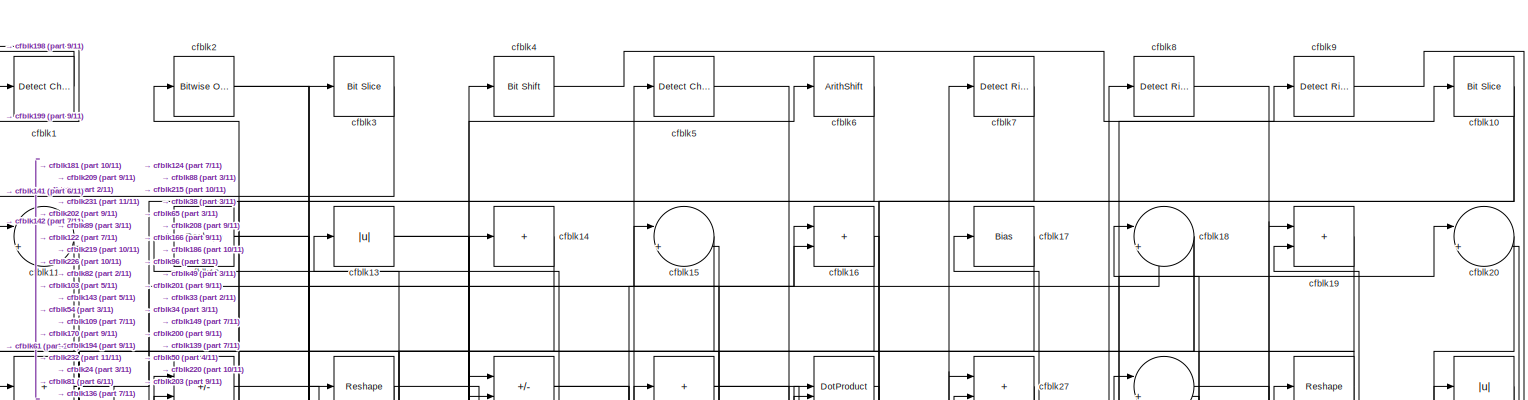
[diagram: root canvas - part 1/11, full width, top band]
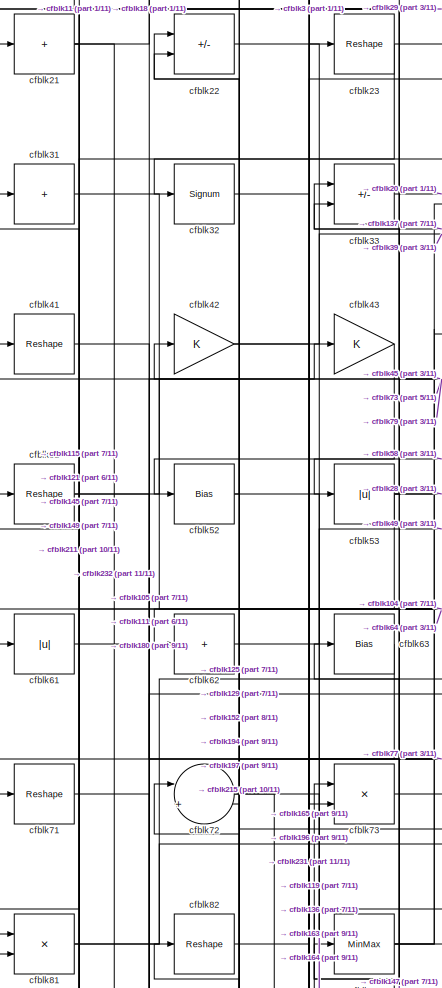
[diagram: root canvas - part 2/11, top left region]
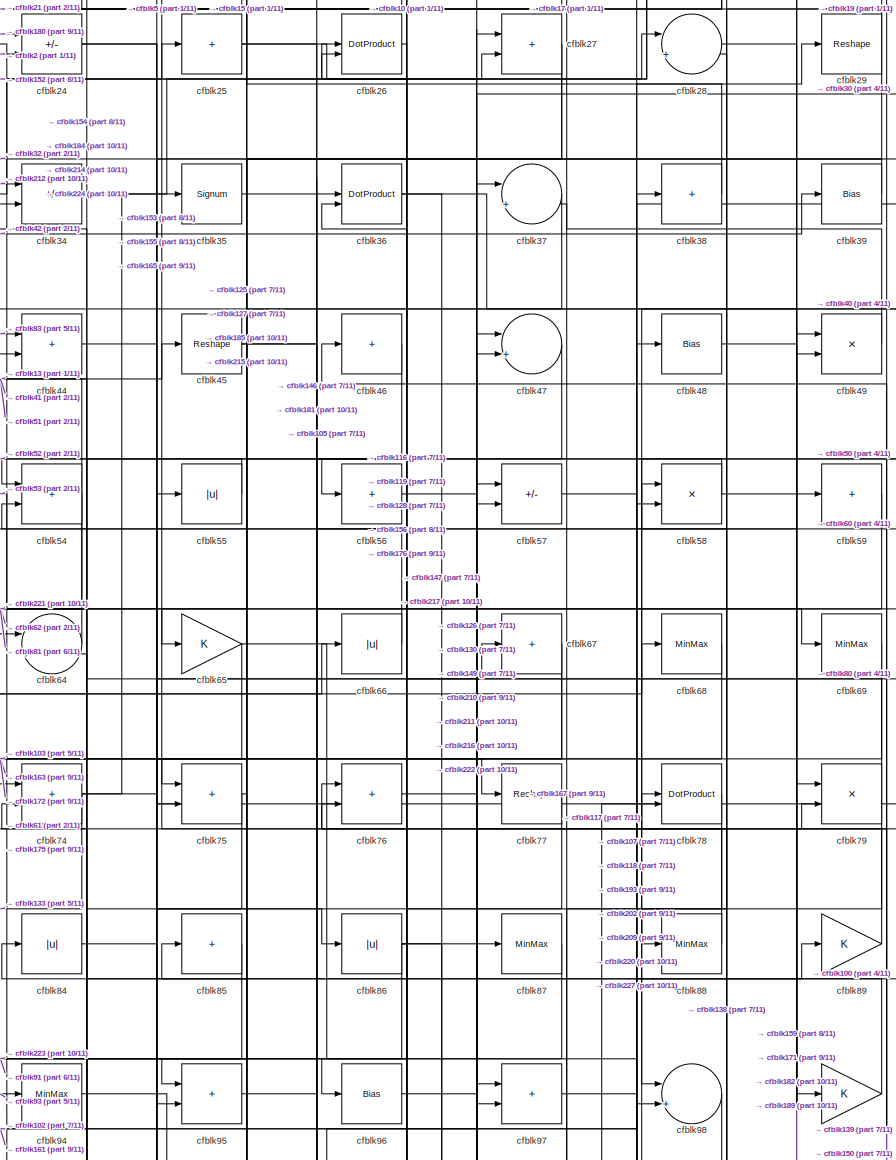
[diagram: root canvas - part 3/11, top center region]
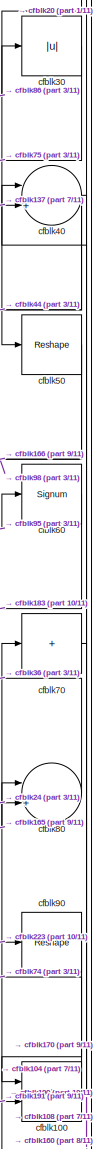
[diagram: root canvas - part 4/11, top right region]
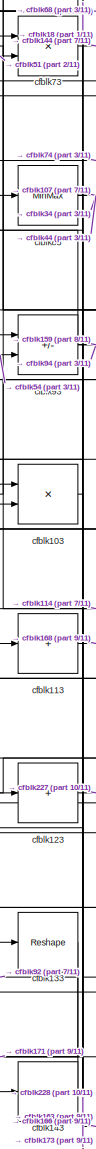
[diagram: root canvas - part 5/11, middle left region]
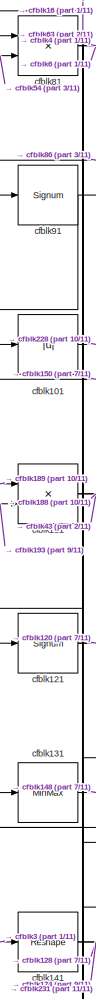
[diagram: root canvas - part 6/11, middle left region]
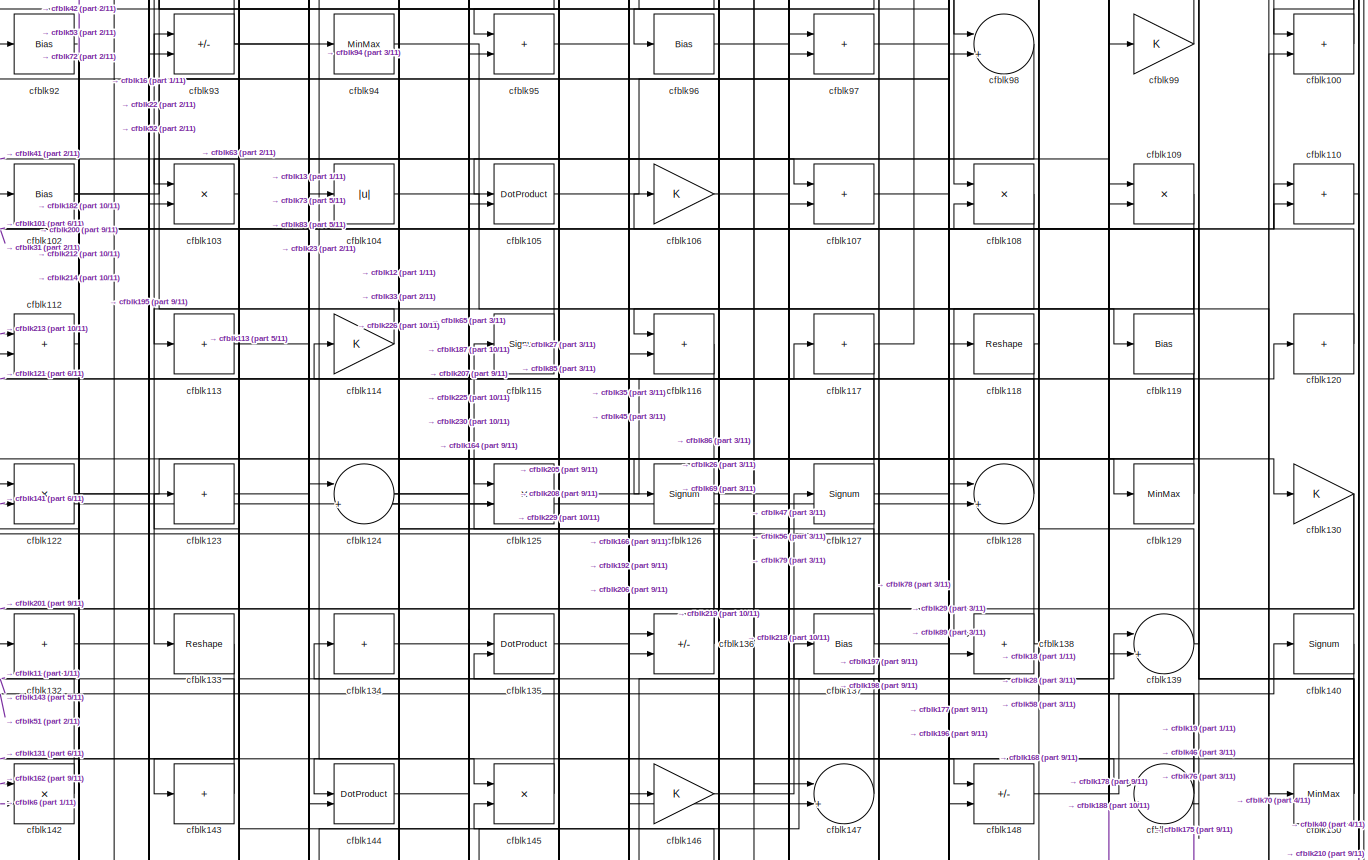
[diagram: root canvas - part 7/11, full width, middle band]
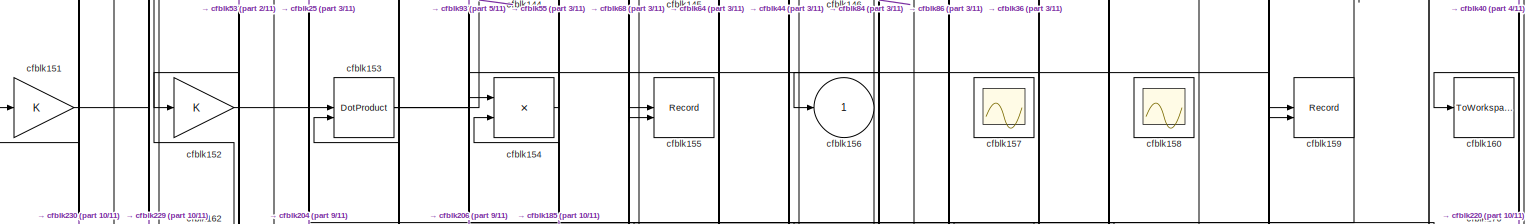
[diagram: root canvas - part 8/11, full width, middle band]
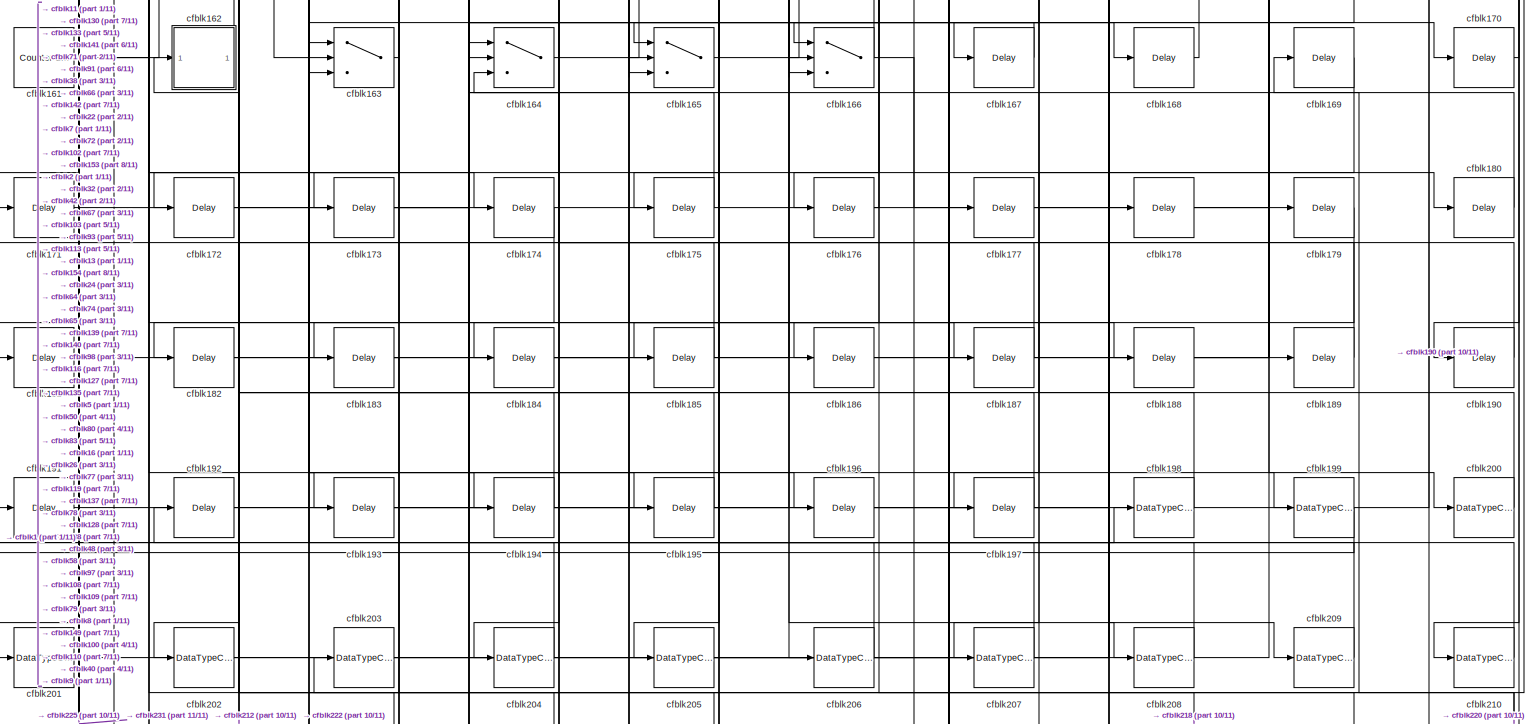
[diagram: root canvas - part 9/11, full width, bottom band]
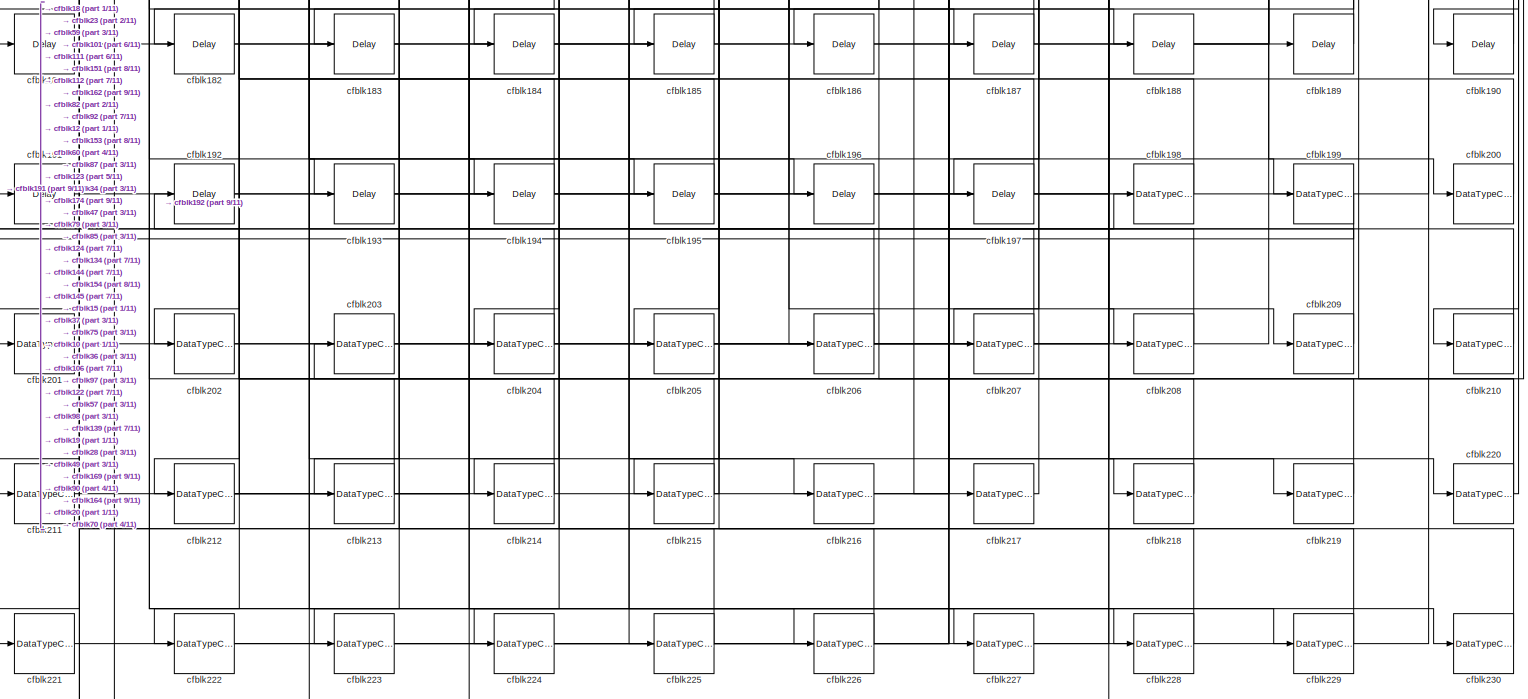
[diagram: root canvas - part 10/11, full width, bottom band]
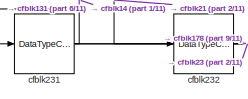
[diagram: root canvas - part 11/11, bottom left region]
MODEL slx_a88f3c303e26
KIND model
CONFIG AbsTol = auto
CONFIG EnableMultiTasking = off
CONFIG FixedStep = auto
CONFIG MaxStep = auto
CONFIG MinStep = auto
CONFIG RelTol = 1e-3
CONFIG SampleTimeConstraint = Unconstrained
CONFIG SolverName = VariableStepAuto
CONFIG StartTime = 0.0
CONFIG StopTime = 10.0
BLOCK [Reference] cfblk1  REF=simulink/Logic and Bit
Operations/Detect
Change
  LibrarySourceBlock = hdlsllib/Logic and Bit\nOperations/Detect\nChange
  SourceBlock = simulink/Logic and Bit\nOperations/Detect\nChange
  SourceType = Detect Change
BLOCK [Reference] cfblk10  REF=hdlsllib/Logic and Bit
Operations/Bit Slice
  SourceBlock = hdlsllib/Logic and Bit\nOperations/Bit Slice
  SourceType = Bit Slice
BLOCK [Sum] cfblk100
  IconShape = rectangular
BLOCK [Abs] cfblk101
  SaturateOnIntegerOverflow = off
BLOCK [Bias] cfblk102
  Bias = 0.0
  SaturateOnIntegerOverflow = off
BLOCK [Product] cfblk103
  Inputs = */
  RndMeth = Zero
  SaturateOnIntegerOverflow = on
BLOCK [Abs] cfblk104
  SaturateOnIntegerOverflow = off
BLOCK [DotProduct] cfblk105
  OutDataTypeStr = Inherit: Inherit via internal rule
BLOCK [Gain] cfblk106
BLOCK [Sum] cfblk107
  IconShape = rectangular
BLOCK [Product] cfblk108
  Inputs = */
  RndMeth = Zero
  SaturateOnIntegerOverflow = on
BLOCK [Product] cfblk109
  Inputs = */
  RndMeth = Zero
  SaturateOnIntegerOverflow = on
BLOCK [Sum] cfblk11
  Inputs = |++
BLOCK [Sum] cfblk110
  IconShape = rectangular
BLOCK [Product] cfblk111
  Inputs = */
  RndMeth = Zero
  SaturateOnIntegerOverflow = on
BLOCK [Sum] cfblk112
  IconShape = rectangular
BLOCK [Sum] cfblk113
  IconShape = rectangular
  Inputs = +
BLOCK [Gain] cfblk114
BLOCK [Signum] cfblk115
BLOCK [Sum] cfblk116
  IconShape = rectangular
BLOCK [Sum] cfblk117
  IconShape = rectangular
  Inputs = +
BLOCK [Reshape] cfblk118
BLOCK [Bias] cfblk119
  Bias = 0.0
  SaturateOnIntegerOverflow = off
BLOCK [Reshape] cfblk12
BLOCK [Sum] cfblk120
  IconShape = rectangular
  Inputs = +
BLOCK [Signum] cfblk121
BLOCK [Product] cfblk122
  Inputs = */
  RndMeth = Zero
  SaturateOnIntegerOverflow = on
BLOCK [Sum] cfblk123
  IconShape = rectangular
  Inputs = +
BLOCK [Sum] cfblk124
  Inputs = |++
BLOCK [Product] cfblk125
  Inputs = */
  RndMeth = Zero
  SaturateOnIntegerOverflow = on
BLOCK [Signum] cfblk126
BLOCK [Signum] cfblk127
BLOCK [Sum] cfblk128
  Inputs = |++
BLOCK [MinMax] cfblk129
BLOCK [Abs] cfblk13
  SaturateOnIntegerOverflow = off
BLOCK [Gain] cfblk130
BLOCK [MinMax] cfblk131
BLOCK [Sum] cfblk132
  IconShape = rectangular
  Inputs = +
BLOCK [Reshape] cfblk133
BLOCK [Sum] cfblk134
  IconShape = rectangular
  Inputs = +
BLOCK [DotProduct] cfblk135
  OutDataTypeStr = Inherit: Inherit via internal rule
BLOCK [Sum] cfblk136
  IconShape = rectangular
  Inputs = +-
BLOCK [Bias] cfblk137
  Bias = 0.0
  SaturateOnIntegerOverflow = off
BLOCK [Sum] cfblk138
  IconShape = rectangular
BLOCK [Sum] cfblk139
  Inputs = |++
BLOCK [Sum] cfblk14
  IconShape = rectangular
  Inputs = +
BLOCK [Signum] cfblk140
BLOCK [Reshape] cfblk141
BLOCK [Product] cfblk142
  Inputs = */
  RndMeth = Zero
  SaturateOnIntegerOverflow = on
BLOCK [Sum] cfblk143
  IconShape = rectangular
  Inputs = +
BLOCK [DotProduct] cfblk144
  OutDataTypeStr = Inherit: Inherit via internal rule
BLOCK [Product] cfblk145
  Inputs = */
  RndMeth = Zero
  SaturateOnIntegerOverflow = on
BLOCK [Gain] cfblk146
BLOCK [Sum] cfblk147
  Inputs = |++
BLOCK [Sum] cfblk148
  IconShape = rectangular
  Inputs = +-
BLOCK [Sum] cfblk149
  Inputs = |++
BLOCK [Sum] cfblk15
  Inputs = |++
BLOCK [MinMax] cfblk150
BLOCK [Gain] cfblk151
BLOCK [Gain] cfblk152
BLOCK [DotProduct] cfblk153
  OutDataTypeStr = Inherit: Inherit via internal rule
BLOCK [Product] cfblk154
  Inputs = */
  RndMeth = Zero
  SaturateOnIntegerOverflow = on
BLOCK [Record] cfblk155
  CompatibilityTag = XY
  FileSettingsInternal = {"entries":[{"content":{"excelSettings":{"content":{},"type":"Streamout.ExcelSettings"}},"type":"Streamout.FileSettingStorage","uuid":""}],"packageUris":["http:\/\/schema.mathworks.com\/mf0\/streamout_blocks\/R2020a"],"version":"1.0"}
  Layout = [1 1]
  SignalsInternal = {"entries":[{"content":{"signals":[{"content":{"blockPath":[],"dimensions":[1],"domain":"","lineColor":"#a2142f","plots":[1],"port":1,"signalID":3560,"signalName":"XY Graph:1"},"type":"RecordBlkView.Signal","uuid":""},{"content":{"blockPath":[],"dimensions":[1],"domain":"","lineColor":"#139fff","plots":[1],"port":2,"signalID":3563,"signalName":"XY Graph:2"},"type":"RecordBlkView.Signal","uuid":""}...<+146ch>
  VisualizationBindings = {"xyplotplugin":{"info":[{"series":[{"bindingParametersList":[{"parameter":"X-Axis","signalID":3560,"signalName":"XY Graph:1"},{"parameter":"Y-Axis","signalID":3563,"signalName":"XY Graph:2"}],"seriesID":33812}],"subplotID":1}]}}
  st = -1
BLOCK [Outport] cfblk156
  VectorParamsAs1DForOutWhenUnconnected = off
BLOCK [Scope] cfblk157
  Floating = on
  NumInputPorts = 1
  ScopeSpecificationString = Simulink.scopes.TimeScopeBlockCfg('CurrentConfiguration', extmgr.ConfigurationSet(extmgr.Configuration('Core','General UI',true,'FigureColor',[0.156862745098039 0.156862745098039 0.156862745098039]),extmgr.Configuration('Core','Source UI',true),extmgr.Configuration('Sources','WiredSimulink',true,'DataLoggingVariableName','ScopeData1','DataLoggingSaveFormat','StructureWithTime','DataLoggingLimitDat...<+2713ch>
BLOCK [Scope] cfblk158
  Floating = on
  NumInputPorts = 1
  ScopeSpecificationString = Simulink.scopes.TimeScopeBlockCfg('CurrentConfiguration', extmgr.ConfigurationSet(extmgr.Configuration('Core','General UI',true,'FigureColor',[0.156862745098039 0.156862745098039 0.156862745098039]),extmgr.Configuration('Core','Source UI',true),extmgr.Configuration('Sources','WiredSimulink',true,'DataLoggingVariableName','ScopeData1','DataLoggingSaveFormat','StructureWithTime','DataLoggingLimitDat...<+2713ch>
BLOCK [Record] cfblk159
  CompatibilityTag = XY
  FileSettingsInternal = {"entries":[{"content":{"excelSettings":{"content":{},"type":"Streamout.ExcelSettings"}},"type":"Streamout.FileSettingStorage","uuid":""}],"packageUris":["http:\/\/schema.mathworks.com\/mf0\/streamout_blocks\/R2020a"],"version":"1.0"}
  Layout = [1 1]
  SignalsInternal = {"entries":[{"content":{"signals":[{"content":{"blockPath":[],"dimensions":[1],"domain":"","lineColor":"#a2142f","plots":[1],"port":1,"signalID":3568,"signalName":"XY Graph:1"},"type":"RecordBlkView.Signal","uuid":""},{"content":{"blockPath":[],"dimensions":[1],"domain":"","lineColor":"#139fff","plots":[1],"port":2,"signalID":3571,"signalName":"XY Graph:2"},"type":"RecordBlkView.Signal","uuid":""}...<+146ch>
  VisualizationBindings = {"xyplotplugin":{"info":[{"series":[{"bindingParametersList":[{"parameter":"X-Axis","signalID":3568,"signalName":"XY Graph:1"},{"parameter":"Y-Axis","signalID":3571,"signalName":"XY Graph:2"}],"seriesID":25713}],"subplotID":1}]}}
  st = -1
BLOCK [Sum] cfblk16
  IconShape = rectangular
BLOCK [ToWorkspace] cfblk160
  MaxDataPoints = inf
  SampleTime = -1
  SaveFormat = Timeseries
  VariableName = simout
BLOCK [Reference] cfblk161  REF=hdlsllib/Sources/Counter
Limited
  SourceBlock = hdlsllib/Sources/Counter\nLimited
  SourceType = Counter Limited
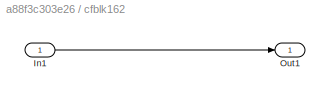
BLOCK [SubSystem] cfblk162
  LibrarySourceBlock = hdlsllib/Ports &\nSubsystems/Subsystem
BLOCK [Inport] cfblk162/In1
BLOCK [Outport] cfblk162/Out1
BLOCK [Switch] cfblk163
  InputSameDT = off
  SaturateOnIntegerOverflow = off
BLOCK [Switch] cfblk164
  InputSameDT = off
  SaturateOnIntegerOverflow = off
BLOCK [Switch] cfblk165
  InputSameDT = off
  SaturateOnIntegerOverflow = off
BLOCK [Switch] cfblk166
  InputSameDT = off
  SaturateOnIntegerOverflow = off
BLOCK [Delay] cfblk167
  InputPortMap = u0
  SampleTime = 1
BLOCK [Delay] cfblk168
  InputPortMap = u0
  SampleTime = 1
BLOCK [Delay] cfblk169
  InputPortMap = u0
  SampleTime = 1
BLOCK [Bias] cfblk17
  Bias = 0.0
  SaturateOnIntegerOverflow = off
BLOCK [Delay] cfblk170
  InputPortMap = u0
  SampleTime = 1
BLOCK [Delay] cfblk171
  InputPortMap = u0
  SampleTime = 1
BLOCK [Delay] cfblk172
  InputPortMap = u0
  SampleTime = 1
BLOCK [Delay] cfblk173
  InputPortMap = u0
  SampleTime = 1
BLOCK [Delay] cfblk174
  InputPortMap = u0
  SampleTime = 1
BLOCK [Delay] cfblk175
  InputPortMap = u0
  SampleTime = 1
BLOCK [Delay] cfblk176
  InputPortMap = u0
  SampleTime = 1
BLOCK [Delay] cfblk177
  InputPortMap = u0
  SampleTime = 1
BLOCK [Delay] cfblk178
  InputPortMap = u0
  SampleTime = 1
BLOCK [Delay] cfblk179
  InputPortMap = u0
  SampleTime = 1
BLOCK [Sum] cfblk18
  Inputs = |++
BLOCK [Delay] cfblk180
  InputPortMap = u0
  SampleTime = 1
BLOCK [Delay] cfblk181
  InputPortMap = u0
  SampleTime = 1
BLOCK [Delay] cfblk182
  InputPortMap = u0
  SampleTime = 1
BLOCK [Delay] cfblk183
  InputPortMap = u0
  SampleTime = 1
BLOCK [Delay] cfblk184
  InputPortMap = u0
  SampleTime = 1
BLOCK [Delay] cfblk185
  InputPortMap = u0
  SampleTime = 1
BLOCK [Delay] cfblk186
  InputPortMap = u0
  SampleTime = 1
BLOCK [Delay] cfblk187
  InputPortMap = u0
  SampleTime = 1
BLOCK [Delay] cfblk188
  InputPortMap = u0
  SampleTime = 1
BLOCK [Delay] cfblk189
  InputPortMap = u0
  SampleTime = 1
BLOCK [Sum] cfblk19
  IconShape = rectangular
BLOCK [Delay] cfblk190
  InputPortMap = u0
  SampleTime = 1
BLOCK [Delay] cfblk191
  InputPortMap = u0
  SampleTime = 1
BLOCK [Delay] cfblk192
  InputPortMap = u0
  SampleTime = 1
BLOCK [Delay] cfblk193
  InputPortMap = u0
  SampleTime = 1
BLOCK [Delay] cfblk194
  InputPortMap = u0
  SampleTime = 1
BLOCK [Delay] cfblk195
  InputPortMap = u0
  SampleTime = 1
BLOCK [Delay] cfblk196
  InputPortMap = u0
  SampleTime = 1
BLOCK [Delay] cfblk197
  InputPortMap = u0
  SampleTime = 1
BLOCK [DataTypeConversion] cfblk198
  OutDataTypeStr = uint8
  RndMeth = Floor
  SaturateOnIntegerOverflow = off
BLOCK [DataTypeConversion] cfblk199
  OutDataTypeStr = uint8
  RndMeth = Floor
  SaturateOnIntegerOverflow = off
BLOCK [Reference] cfblk2  REF=simulink/Logic and Bit
Operations/Bitwise
Operator
  LibrarySourceBlock = hdlsllib/Logic and Bit\nOperations/Bitwise\nOperator
  SourceBlock = simulink/Logic and Bit\nOperations/Bitwise\nOperator
  SourceType = Bitwise Operator
BLOCK [Sum] cfblk20
  Inputs = |++
BLOCK [DataTypeConversion] cfblk200
  OutDataTypeStr = uint8
  RndMeth = Floor
  SaturateOnIntegerOverflow = off
BLOCK [DataTypeConversion] cfblk201
  OutDataTypeStr = uint8
  RndMeth = Floor
  SaturateOnIntegerOverflow = off
BLOCK [DataTypeConversion] cfblk202
  OutDataTypeStr = uint8
  RndMeth = Floor
  SaturateOnIntegerOverflow = off
BLOCK [DataTypeConversion] cfblk203
  OutDataTypeStr = uint8
  RndMeth = Floor
  SaturateOnIntegerOverflow = off
BLOCK [DataTypeConversion] cfblk204
  OutDataTypeStr = uint8
  RndMeth = Floor
  SaturateOnIntegerOverflow = off
BLOCK [DataTypeConversion] cfblk205
  OutDataTypeStr = uint8
  RndMeth = Floor
  SaturateOnIntegerOverflow = off
BLOCK [DataTypeConversion] cfblk206
  OutDataTypeStr = uint8
  RndMeth = Floor
  SaturateOnIntegerOverflow = off
BLOCK [DataTypeConversion] cfblk207
  OutDataTypeStr = uint8
  RndMeth = Floor
  SaturateOnIntegerOverflow = off
BLOCK [DataTypeConversion] cfblk208
  OutDataTypeStr = uint8
  RndMeth = Floor
  SaturateOnIntegerOverflow = off
BLOCK [DataTypeConversion] cfblk209
  OutDataTypeStr = uint8
  RndMeth = Floor
  SaturateOnIntegerOverflow = off
BLOCK [Sum] cfblk21
  IconShape = rectangular
  Inputs = +
BLOCK [DataTypeConversion] cfblk210
  OutDataTypeStr = uint8
  RndMeth = Floor
  SaturateOnIntegerOverflow = off
BLOCK [DataTypeConversion] cfblk211
  OutDataTypeStr = uint8
  RndMeth = Floor
  SaturateOnIntegerOverflow = off
BLOCK [DataTypeConversion] cfblk212
  RndMeth = Floor
  SaturateOnIntegerOverflow = off
BLOCK [DataTypeConversion] cfblk213
  OutDataTypeStr = uint8
  RndMeth = Floor
  SaturateOnIntegerOverflow = off
BLOCK [DataTypeConversion] cfblk214
  OutDataTypeStr = uint8
  RndMeth = Floor
  SaturateOnIntegerOverflow = off
BLOCK [DataTypeConversion] cfblk215
  RndMeth = Floor
  SaturateOnIntegerOverflow = off
BLOCK [DataTypeConversion] cfblk216
  OutDataTypeStr = uint8
  RndMeth = Floor
  SaturateOnIntegerOverflow = off
BLOCK [DataTypeConversion] cfblk217
  OutDataTypeStr = uint8
  RndMeth = Floor
  SaturateOnIntegerOverflow = off
BLOCK [DataTypeConversion] cfblk218
  OutDataTypeStr = uint8
  RndMeth = Floor
  SaturateOnIntegerOverflow = off
BLOCK [DataTypeConversion] cfblk219
  OutDataTypeStr = uint8
  RndMeth = Floor
  SaturateOnIntegerOverflow = off
BLOCK [Sum] cfblk22
  IconShape = rectangular
  Inputs = +-
BLOCK [DataTypeConversion] cfblk220
  RndMeth = Floor
  SaturateOnIntegerOverflow = off
BLOCK [DataTypeConversion] cfblk221
  OutDataTypeStr = uint8
  RndMeth = Floor
  SaturateOnIntegerOverflow = off
BLOCK [DataTypeConversion] cfblk222
  OutDataTypeStr = uint8
  RndMeth = Floor
  SaturateOnIntegerOverflow = off
BLOCK [DataTypeConversion] cfblk223
  OutDataTypeStr = uint8
  RndMeth = Floor
  SaturateOnIntegerOverflow = off
BLOCK [DataTypeConversion] cfblk224
  OutDataTypeStr = uint8
  RndMeth = Floor
  SaturateOnIntegerOverflow = off
BLOCK [DataTypeConversion] cfblk225
  OutDataTypeStr = uint8
  RndMeth = Floor
  SaturateOnIntegerOverflow = off
BLOCK [DataTypeConversion] cfblk226
  OutDataTypeStr = uint8
  RndMeth = Floor
  SaturateOnIntegerOverflow = off
BLOCK [DataTypeConversion] cfblk227
  OutDataTypeStr = uint8
  RndMeth = Floor
  SaturateOnIntegerOverflow = off
BLOCK [DataTypeConversion] cfblk228
  OutDataTypeStr = uint8
  RndMeth = Floor
  SaturateOnIntegerOverflow = off
BLOCK [DataTypeConversion] cfblk229
  OutDataTypeStr = uint8
  RndMeth = Floor
  SaturateOnIntegerOverflow = off
BLOCK [Reshape] cfblk23
BLOCK [DataTypeConversion] cfblk230
  OutDataTypeStr = uint8
  RndMeth = Floor
  SaturateOnIntegerOverflow = off
BLOCK [DataTypeConversion] cfblk231
  RndMeth = Floor
  SaturateOnIntegerOverflow = off
BLOCK [DataTypeConversion] cfblk232
  OutDataTypeStr = uint8
  RndMeth = Floor
  SaturateOnIntegerOverflow = off
BLOCK [Sum] cfblk24
  IconShape = rectangular
  Inputs = +-
BLOCK [Sum] cfblk25
  IconShape = rectangular
  Inputs = +
BLOCK [DotProduct] cfblk26
  OutDataTypeStr = Inherit: Inherit via internal rule
BLOCK [Sum] cfblk27
  IconShape = rectangular
BLOCK [Sum] cfblk28
  Inputs = |++
BLOCK [Reshape] cfblk29
BLOCK [Reference] cfblk3  REF=hdlsllib/Logic and Bit
Operations/Bit Slice
  SourceBlock = hdlsllib/Logic and Bit\nOperations/Bit Slice
  SourceType = Bit Slice
BLOCK [Abs] cfblk30
  SaturateOnIntegerOverflow = off
BLOCK [Sum] cfblk31
  IconShape = rectangular
  Inputs = +
BLOCK [Signum] cfblk32
BLOCK [Sum] cfblk33
  IconShape = rectangular
  Inputs = +-
BLOCK [Sum] cfblk34
  IconShape = rectangular
  Inputs = +-
BLOCK [Signum] cfblk35
BLOCK [DotProduct] cfblk36
  OutDataTypeStr = Inherit: Inherit via internal rule
BLOCK [Sum] cfblk37
  Inputs = |++
BLOCK [Sum] cfblk38
  IconShape = rectangular
  Inputs = +
BLOCK [Bias] cfblk39
  Bias = 0.0
  SaturateOnIntegerOverflow = off
BLOCK [Reference] cfblk4  REF=hdlsllib/Logic and Bit
Operations/Bit Shift
  SourceBlock = hdlsllib/Logic and Bit\nOperations/Bit Shift
  SourceType = Bit Shift
BLOCK [Sum] cfblk40
  Inputs = |++
BLOCK [Reshape] cfblk41
BLOCK [Gain] cfblk42
BLOCK [Gain] cfblk43
BLOCK [Sum] cfblk44
  IconShape = rectangular
BLOCK [Reshape] cfblk45
BLOCK [Sum] cfblk46
  IconShape = rectangular
  Inputs = +
BLOCK [Sum] cfblk47
  Inputs = |++
BLOCK [Bias] cfblk48
  Bias = 0.0
  SaturateOnIntegerOverflow = off
BLOCK [Product] cfblk49
  Inputs = */
  RndMeth = Zero
  SaturateOnIntegerOverflow = on
BLOCK [Reference] cfblk5  REF=simulink/Logic and Bit
Operations/Detect
Change
  LibrarySourceBlock = hdlsllib/Logic and Bit\nOperations/Detect\nChange
  SourceBlock = simulink/Logic and Bit\nOperations/Detect\nChange
  SourceType = Detect Change
BLOCK [Reshape] cfblk50
BLOCK [Reshape] cfblk51
BLOCK [Bias] cfblk52
  Bias = 0.0
  SaturateOnIntegerOverflow = off
BLOCK [Abs] cfblk53
  SaturateOnIntegerOverflow = off
BLOCK [Sum] cfblk54
  IconShape = rectangular
BLOCK [Abs] cfblk55
  SaturateOnIntegerOverflow = off
BLOCK [Sum] cfblk56
  IconShape = rectangular
  Inputs = +
BLOCK [Sum] cfblk57
  IconShape = rectangular
  Inputs = +-
BLOCK [Product] cfblk58
  Inputs = */
  RndMeth = Zero
  SaturateOnIntegerOverflow = on
BLOCK [Sum] cfblk59
  IconShape = rectangular
  Inputs = +
BLOCK [ArithShift] cfblk6
  BitShiftNumber = 8
  InputPortMap = u0
BLOCK [Signum] cfblk60
BLOCK [Abs] cfblk61
  SaturateOnIntegerOverflow = off
BLOCK [Sum] cfblk62
  IconShape = rectangular
  Inputs = +
BLOCK [Bias] cfblk63
  Bias = 0.0
  SaturateOnIntegerOverflow = off
BLOCK [Sum] cfblk64
  Inputs = |++
BLOCK [Gain] cfblk65
BLOCK [Abs] cfblk66
  SaturateOnIntegerOverflow = off
BLOCK [Sum] cfblk67
  IconShape = rectangular
  Inputs = +
BLOCK [MinMax] cfblk68
BLOCK [MinMax] cfblk69
BLOCK [Reference] cfblk7  REF=hdlsllib/Logic and Bit
Operations/Detect Rise
Nonnegative
  SourceBlock = hdlsllib/Logic and Bit\nOperations/Detect Rise\nNonnegative
  SourceType = Detect Rise Nonnegative
BLOCK [Sum] cfblk70
  IconShape = rectangular
  Inputs = +
BLOCK [Reshape] cfblk71
BLOCK [Sum] cfblk72
  Inputs = |++
BLOCK [Product] cfblk73
  Inputs = */
  RndMeth = Zero
  SaturateOnIntegerOverflow = on
BLOCK [Sum] cfblk74
  IconShape = rectangular
BLOCK [Sum] cfblk75
  IconShape = rectangular
BLOCK [Sum] cfblk76
  IconShape = rectangular
BLOCK [Reshape] cfblk77
BLOCK [DotProduct] cfblk78
  OutDataTypeStr = Inherit: Inherit via internal rule
BLOCK [Product] cfblk79
  Inputs = */
  RndMeth = Zero
  SaturateOnIntegerOverflow = on
BLOCK [Reference] cfblk8  REF=hdlsllib/Logic and Bit
Operations/Detect Rise
Nonnegative
  SourceBlock = hdlsllib/Logic and Bit\nOperations/Detect Rise\nNonnegative
  SourceType = Detect Rise Nonnegative
BLOCK [Sum] cfblk80
  Inputs = |++
BLOCK [Product] cfblk81
  Inputs = */
  RndMeth = Zero
  SaturateOnIntegerOverflow = on
BLOCK [Reshape] cfblk82
BLOCK [MinMax] cfblk83
BLOCK [Abs] cfblk84
  SaturateOnIntegerOverflow = off
BLOCK [Sum] cfblk85
  IconShape = rectangular
  Inputs = +
BLOCK [Abs] cfblk86
  SaturateOnIntegerOverflow = off
BLOCK [MinMax] cfblk87
BLOCK [MinMax] cfblk88
BLOCK [Gain] cfblk89
BLOCK [Reference] cfblk9  REF=hdlsllib/Logic and Bit
Operations/Detect Rise
Positive
  SourceBlock = hdlsllib/Logic and Bit\nOperations/Detect Rise\nPositive
  SourceType = Detect Rise Positive
BLOCK [Reshape] cfblk90
BLOCK [Signum] cfblk91
BLOCK [Bias] cfblk92
  Bias = 0.0
  SaturateOnIntegerOverflow = off
BLOCK [Sum] cfblk93
  IconShape = rectangular
  Inputs = +-
BLOCK [MinMax] cfblk94
BLOCK [Sum] cfblk95
  IconShape = rectangular
BLOCK [Bias] cfblk96
  Bias = 0.0
  SaturateOnIntegerOverflow = off
BLOCK [Sum] cfblk97
  IconShape = rectangular
BLOCK [Sum] cfblk98
  Inputs = |++
BLOCK [Gain] cfblk99
LINE cfblk100:1 -> cfblk74:2
LINE cfblk101:1 -> cfblk228:1
NET cfblk102:1 -> cfblk195:1, cfblk47:1
LINE cfblk103:1 -> cfblk173:1
LINE cfblk104:1 -> cfblk70:1
LINE cfblk105:1 -> cfblk89:1
LINE cfblk106:1 -> cfblk218:1
LINE cfblk107:1 -> cfblk29:1
LINE cfblk108:1 -> cfblk138:1
LINE cfblk109:1 -> cfblk126:1
NET cfblk10:1 -> cfblk186:1, cfblk96:1
LINE cfblk110:1 -> cfblk210:1
NET cfblk111:1 -> cfblk188:1, cfblk43:1
LINE cfblk112:1 -> cfblk212:1
LINE cfblk113:1 -> cfblk168:1
LINE cfblk114:1 -> cfblk113:1
LINE cfblk115:1 -> cfblk31:1
LINE cfblk116:1 -> cfblk136:2
NET cfblk117:1 -> cfblk144:1, cfblk78:2
NET cfblk118:1 -> cfblk132:1, cfblk58:1
NET cfblk119:1 -> cfblk124:2, cfblk197:1, cfblk42:1, cfblk76:2
LINE cfblk11:1 -> cfblk61:1
LINE cfblk120:1 -> cfblk110:1
NET cfblk121:1 -> cfblk120:1, cfblk148:2
NET cfblk122:1 -> cfblk129:1, cfblk16:2
LINE cfblk123:1 -> cfblk227:1
NET cfblk124:1 -> cfblk16:1, cfblk187:1
LINE cfblk125:1 -> cfblk47:2
LINE cfblk126:1 -> cfblk79:2
NET cfblk127:1 -> cfblk110:2, cfblk166:2, cfblk85:1
LINE cfblk128:1 -> cfblk26:1
LINE cfblk129:1 -> cfblk72:1
NET cfblk12:1 -> cfblk219:1, cfblk226:1
NET cfblk130:1 -> cfblk149:2, cfblk201:1
LINE cfblk131:1 -> cfblk148:1
LINE cfblk132:1 -> cfblk117:1
LINE cfblk133:1 -> cfblk171:1
LINE cfblk134:1 -> cfblk225:1
LINE cfblk135:1 -> cfblk206:1
NET cfblk136:1 -> cfblk115:1, cfblk12:1
NET cfblk137:1 -> cfblk33:1, cfblk40:2
NET cfblk138:1 -> cfblk122:1, cfblk28:2
NET cfblk139:1 -> cfblk19:2, cfblk78:1
NET cfblk13:1 -> cfblk109:2, cfblk170:1
LINE cfblk140:1 -> cfblk205:1
NET cfblk141:1 -> cfblk128:2, cfblk174:1
LINE cfblk142:1 -> cfblk11:1
LINE cfblk143:1 -> cfblk92:1
LINE cfblk144:1 -> cfblk230:1
LINE cfblk145:1 -> cfblk114:1
LINE cfblk146:1 -> cfblk127:1
LINE cfblk147:1 -> cfblk63:1
LINE cfblk148:1 -> cfblk140:1
NET cfblk149:1 -> cfblk175:1, cfblk18:1, cfblk51:1
LINE cfblk14:1 -> cfblk231:1
NET cfblk150:1 -> cfblk101:1, cfblk46:1, cfblk76:1
LINE cfblk151:1 -> cfblk229:1
LINE cfblk152:1 -> cfblk25:1
NET cfblk153:1 -> cfblk55:1, cfblk68:1
LINE cfblk154:1 -> cfblk64:2
LINE cfblk15:1 -> cfblk103:1
NET cfblk161:1 -> cfblk38:1, cfblk66:1
LINE cfblk162/In1:1 -> cfblk162/Out1:1
LINE cfblk162:1 -> cfblk142:1
LINE cfblk163:1 -> cfblk93:1
LINE cfblk164:1 -> cfblk139:1
LINE cfblk165:1 -> cfblk80:1
NET cfblk166:1 -> cfblk177:1, cfblk83:1
LINE cfblk167:1 -> cfblk164:2
LINE cfblk168:1 -> cfblk108:2
LINE cfblk169:1 -> cfblk207:1
NET cfblk16:1 -> cfblk166:1, cfblk81:1
LINE cfblk170:1 -> cfblk40:1
LINE cfblk171:1 -> cfblk79:1
LINE cfblk172:1 -> cfblk64:1
LINE cfblk173:1 -> cfblk199:1
LINE cfblk174:1 -> cfblk222:1
LINE cfblk175:1 -> cfblk74:1
LINE cfblk176:1 -> cfblk26:2
LINE cfblk177:1 -> cfblk128:1
LINE cfblk178:1 -> cfblk109:1
LINE cfblk179:1 -> cfblk204:1
LINE cfblk17:1 -> cfblk65:1
LINE cfblk180:1 -> cfblk24:1
LINE cfblk181:1 -> cfblk36:1
LINE cfblk182:1 -> cfblk49:1
LINE cfblk183:1 -> cfblk213:1
LINE cfblk184:1 -> cfblk216:1
LINE cfblk185:1 -> cfblk154:2
LINE cfblk186:1 -> cfblk19:1
LINE cfblk187:1 -> cfblk122:2
LINE cfblk188:1 -> cfblk139:2
LINE cfblk189:1 -> cfblk111:1
NET cfblk18:1 -> cfblk143:1, cfblk181:1
LINE cfblk190:1 -> cfblk164:3
LINE cfblk191:1 -> cfblk100:2
LINE cfblk192:1 -> cfblk116:2
LINE cfblk193:1 -> cfblk58:2
LINE cfblk194:1 -> cfblk72:2
LINE cfblk195:1 -> cfblk163:1
LINE cfblk196:1 -> cfblk138:2
LINE cfblk197:1 -> cfblk22:2
LINE cfblk198:1 -> cfblk137:1
LINE cfblk199:1 -> cfblk1:1
LINE cfblk19:1 -> cfblk88:1
LINE cfblk1:1 -> cfblk198:1
LINE cfblk200:1 -> cfblk102:1
LINE cfblk201:1 -> cfblk8:1
LINE cfblk202:1 -> cfblk48:1
LINE cfblk203:1 -> cfblk7:1
LINE cfblk204:1 -> cfblk153:1
LINE cfblk205:1 -> cfblk179:1
LINE cfblk206:1 -> cfblk154:1
LINE cfblk207:1 -> cfblk135:1
LINE cfblk208:1 -> cfblk135:2
LINE cfblk209:1 -> cfblk11:2
LINE cfblk20:1 -> cfblk50:1
LINE cfblk210:1 -> cfblk97:1
LINE cfblk211:1 -> cfblk97:2
NET cfblk212:1 -> cfblk124:1, cfblk162:1, cfblk34:1
LINE cfblk213:1 -> cfblk112:1
LINE cfblk214:1 -> cfblk112:2
NET cfblk215:1 -> cfblk15:1, cfblk82:1
LINE cfblk216:1 -> cfblk37:1
LINE cfblk217:1 -> cfblk37:2
LINE cfblk218:1 -> cfblk192:1
LINE cfblk219:1 -> cfblk106:1
NET cfblk21:1 -> cfblk18:2, cfblk232:1, cfblk71:1
NET cfblk220:1 -> cfblk153:2, cfblk169:1, cfblk20:2
LINE cfblk221:1 -> cfblk57:1
LINE cfblk222:1 -> cfblk57:2
LINE cfblk223:1 -> cfblk90:1
LINE cfblk224:1 -> cfblk87:1
LINE cfblk225:1 -> cfblk191:1
LINE cfblk226:1 -> cfblk134:1
LINE cfblk227:1 -> cfblk98:2
LINE cfblk228:1 -> cfblk123:1
LINE cfblk229:1 -> cfblk145:2
LINE cfblk22:1 -> cfblk119:1
LINE cfblk230:1 -> cfblk151:1
NET cfblk231:1 -> cfblk131:1, cfblk178:1, cfblk23:1
LINE cfblk232:1 -> cfblk14:1
NET cfblk23:1 -> cfblk145:1, cfblk211:1
NET cfblk24:1 -> cfblk80:2, cfblk86:1
NET cfblk25:1 -> cfblk27:2, cfblk69:1
LINE cfblk26:1 -> cfblk56:1
NET cfblk27:1 -> cfblk125:1, cfblk75:2
LINE cfblk28:1 -> cfblk189:1
NET cfblk29:1 -> cfblk21:1, cfblk95:1
NET cfblk2:1 -> cfblk194:1, cfblk24:2
LINE cfblk30:1 -> cfblk75:1
LINE cfblk31:1 -> cfblk104:1
LINE cfblk32:1 -> cfblk196:1
LINE cfblk33:1 -> cfblk20:1
LINE cfblk34:1 -> cfblk10:1
LINE cfblk35:1 -> cfblk107:1
NET cfblk36:1 -> cfblk159:1, cfblk217:1
LINE cfblk37:1 -> cfblk215:1
LINE cfblk38:1 -> cfblk15:2
LINE cfblk39:1 -> cfblk32:1
LINE cfblk3:1 -> cfblk141:1
NET cfblk40:1 -> cfblk108:1, cfblk160:1, cfblk44:2
LINE cfblk41:1 -> cfblk105:2
NET cfblk42:1 -> cfblk165:2, cfblk39:1
LINE cfblk43:1 -> cfblk53:1
LINE cfblk44:1 -> cfblk155:2
NET cfblk45:1 -> cfblk146:1, cfblk147:2
LINE cfblk46:1 -> cfblk105:1
LINE cfblk47:1 -> cfblk184:1
LINE cfblk48:1 -> cfblk99:1
LINE cfblk49:1 -> cfblk17:1
LINE cfblk4:1 -> cfblk9:1
NET cfblk50:1 -> cfblk166:3, cfblk98:1
NET cfblk51:1 -> cfblk45:1, cfblk73:2
NET cfblk52:1 -> cfblk136:1, cfblk22:1
NET cfblk53:1 -> cfblk125:2, cfblk152:1, cfblk28:1, cfblk33:2
NET cfblk54:1 -> cfblk13:1, cfblk81:2, cfblk93:2
LINE cfblk55:1 -> cfblk54:1
LINE cfblk56:1 -> cfblk149:1
LINE cfblk57:1 -> cfblk220:1
NET cfblk58:1 -> cfblk52:1, cfblk59:1
LINE cfblk59:1 -> cfblk221:1
LINE cfblk5:1 -> cfblk208:1
LINE cfblk60:1 -> cfblk183:1
LINE cfblk61:1 -> cfblk77:1
LINE cfblk62:1 -> cfblk49:2
LINE cfblk63:1 -> cfblk121:1
LINE cfblk64:1 -> cfblk62:1
NET cfblk65:1 -> cfblk118:1, cfblk165:3
LINE cfblk66:1 -> cfblk54:2
NET cfblk67:1 -> cfblk163:3, cfblk172:1
LINE cfblk68:1 -> cfblk103:2
LINE cfblk69:1 -> cfblk116:1
LINE cfblk6:1 -> cfblk142:2
LINE cfblk70:1 -> cfblk190:1
LINE cfblk71:1 -> cfblk180:1
NET cfblk72:1 -> cfblk163:2, cfblk164:1
LINE cfblk73:1 -> cfblk144:2
NET cfblk74:1 -> cfblk133:1, cfblk35:1, cfblk67:1
NET cfblk75:1 -> cfblk185:1, cfblk95:2
LINE cfblk76:1 -> cfblk130:1
LINE cfblk77:1 -> cfblk176:1
LINE cfblk78:1 -> cfblk167:1
NET cfblk79:1 -> cfblk224:1, cfblk41:1
LINE cfblk7:1 -> cfblk202:1
LINE cfblk80:1 -> cfblk36:2
NET cfblk81:1 -> cfblk4:1, cfblk6:1
LINE cfblk82:1 -> cfblk3:1
NET cfblk83:1 -> cfblk107:2, cfblk34:2, cfblk44:1
LINE cfblk84:1 -> cfblk155:1
LINE cfblk85:1 -> cfblk214:1
NET cfblk86:1 -> cfblk147:1, cfblk156:1, cfblk30:1, cfblk91:1
LINE cfblk87:1 -> cfblk223:1
LINE cfblk88:1 -> cfblk5:1
LINE cfblk89:1 -> cfblk2:1
LINE cfblk8:1 -> cfblk200:1
LINE cfblk90:1 -> cfblk100:1
NET cfblk91:1 -> cfblk111:2, cfblk193:1
LINE cfblk92:1 -> cfblk182:1
NET cfblk93:1 -> cfblk159:2, cfblk73:1, cfblk94:1
LINE cfblk94:1 -> cfblk150:1
LINE cfblk95:1 -> cfblk60:1
LINE cfblk96:1 -> cfblk27:1
LINE cfblk97:1 -> cfblk209:1
LINE cfblk98:1 -> cfblk165:1
LINE cfblk99:1 -> cfblk84:1
LINE cfblk9:1 -> cfblk203:1
note: NET lines group one-source signal fan-out (src -> all destinations, sorted); 1:1 wires keep LINE
